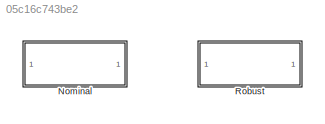
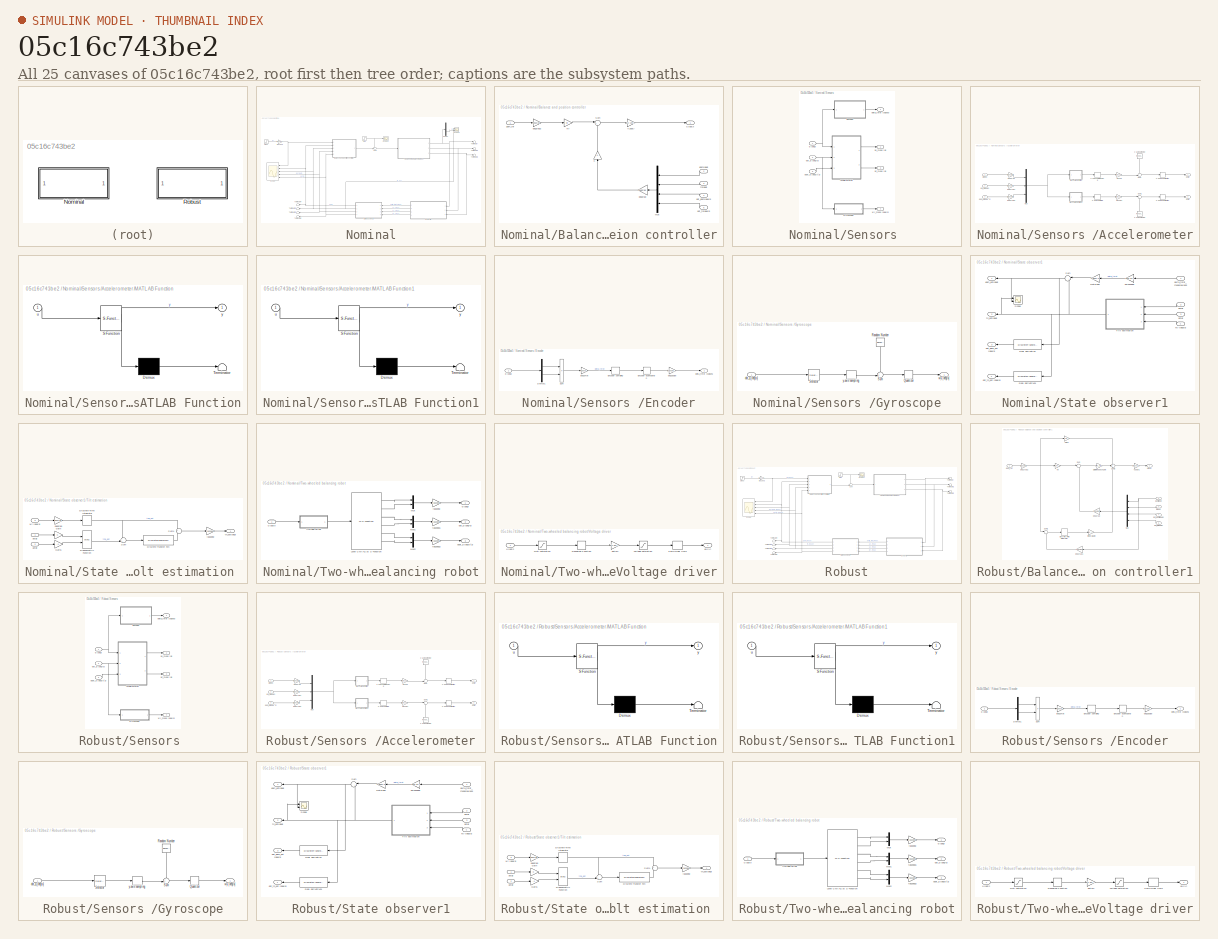
[diagram: thumbnail index - all 25 canvases of the model, root first then tree order]
MODEL slx_05c16c743be2
KIND model
CONFIG AbsTol = auto
CONFIG EnableMultiTasking = off
CONFIG FixedStep = Ts
CONFIG MaxStep = auto
CONFIG MinStep = auto
CONFIG RelTol = 1e-3
CONFIG SampleTimeConstraint = Unconstrained
CONFIG SolverName = VariableStepAuto
CONFIG StartTime = 0.0
CONFIG StopTime = 90
BLOCK [SubSystem] Nominal
  Commented = on
  Ports = []
  RequestExecContextInheritance = off
BLOCK [SubSystem] Nominal/Balance and position controller
  Ports = [5, 1]
  RequestExecContextInheritance = off
BLOCK [Gain] Nominal/Balance and position controller/K
  Gain = K
  Multiplication = Matrix(K*u)
  NameLocation = right
BLOCK [Mux] Nominal/Balance and position controller/Mux
  DisplayOption = bar
  NameLocation = top
  Ports = [4, 1]
BLOCK [Gain] Nominal/Balance and position controller/Nr
  Gain = Nr
BLOCK [Sum] Nominal/Balance and position controller/Sum
  Inputs = |+-
  Ports = [2, 1]
BLOCK [Gain] Nominal/Balance and position controller/V2duty
  Gain = drv.V2duty
BLOCK [Gain] Nominal/Balance and position controller/deg2rad
  Gain = deg2rad
  NameLocation = top
BLOCK [Gain] Nominal/Balance and position controller/deg2rad2
  Gain = deg2rad
BLOCK [Inport] Nominal/Balance and position controller/dot_gam[deg//s]
  NameLocation = top
  Port = 4
BLOCK [Inport] Nominal/Balance and position controller/dot_th[deg//s]
  NameLocation = top
  Port = 5
BLOCK [Inport] Nominal/Balance and position controller/gam[deg]
  NameLocation = top
  Port = 2
BLOCK [Inport] Nominal/Balance and position controller/gam_ref
BLOCK [Inport] Nominal/Balance and position controller/th[deg]
  NameLocation = top
  Port = 3
BLOCK [Outport] Nominal/Balance and position controller/u [duty]
BLOCK [Demux] Nominal/Demux
  Outputs = 2
  Ports = [1, 2]
BLOCK [Scope] Nominal/Scope
  Floating = off
  NameLocation = top
  NumInputPorts = 5
  Ports = [5]
  ScopeSpecificationString = Simulink.scopes.TimeScopeBlockCfg('CurrentConfiguration', extmgr.ConfigurationSet(extmgr.Configuration('Core','General UI',true),extmgr.Configuration('Core','Source UI',true),extmgr.Configuration('Sources','WiredSimulink',true,'DataLoggingVariableName','ScopeData3'),extmgr.Configuration('Visuals','Time Domain',true,'SerializedDisplays',{struct('MinYLimReal','-208.72729','MaxYLimReal','191.04562','...<+1603ch>
BLOCK [Scope] Nominal/Scope1
  Floating = off
  NumInputPorts = 1
  Ports = [1]
  ScopeSpecificationString = Simulink.scopes.TimeScopeBlockCfg('CurrentConfiguration', extmgr.ConfigurationSet(extmgr.Configuration('Core','General UI',true),extmgr.Configuration('Core','Source UI',true),extmgr.Configuration('Sources','WiredSimulink',true,'DataLoggingVariableName','ScopeData5'),extmgr.Configuration('Visuals','Time Domain',true,'SerializedDisplays',{struct('MinYLimReal','-1.00000','MaxYLimReal','1.00000','YLab...<+1446ch>
BLOCK [Scope] Nominal/Scope2
  Floating = off
  NumInputPorts = 2
  Ports = [2]
  ScopeSpecificationString = Simulink.scopes.TimeScopeBlockCfg('CurrentConfiguration', extmgr.ConfigurationSet(extmgr.Configuration('Core','General UI',true),extmgr.Configuration('Core','Source UI',true),extmgr.Configuration('Sources','WiredSimulink',true,'DataLoggingVariableName','ScopeData1'),extmgr.Configuration('Visuals','Time Domain',true,'SerializedDisplays',{struct('MinYLimReal','-1.33859','MaxYLimReal','6.19448','YLab...<+1511ch>
BLOCK [SubSystem] Nominal/Sensors 
  Ports = [3, 4]
  RequestExecContextInheritance = off
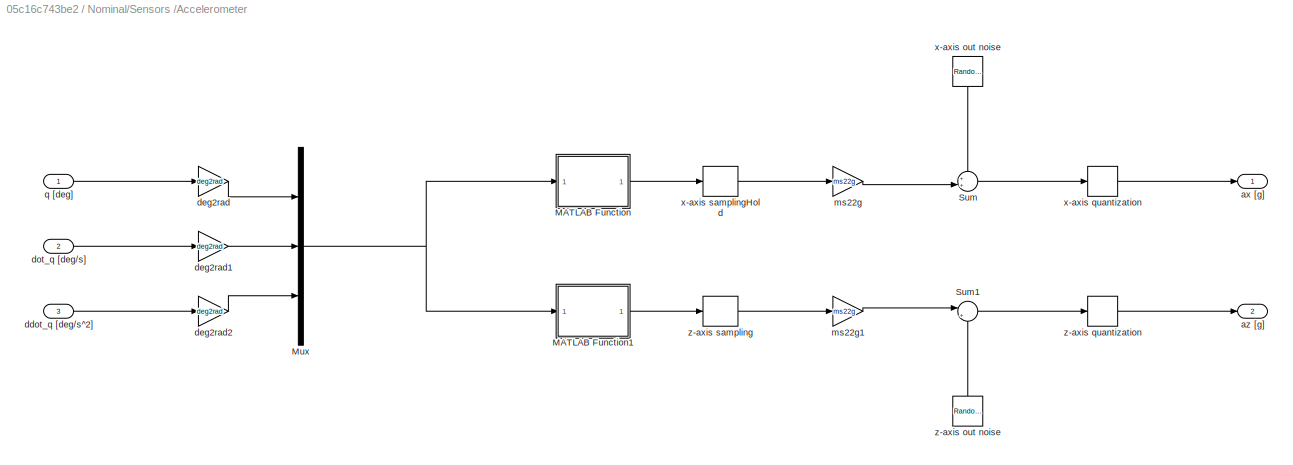
BLOCK [SubSystem] Nominal/Sensors /Accelerometer
  Ports = [3, 2]
  RequestExecContextInheritance = off
BLOCK [SubSystem] Nominal/Sensors /Accelerometer/MATLAB Function
  ErrorFcn = Stateflow.Translate.translate
  PermitHierarchicalResolution = ExplicitOnly
  Ports = [1, 1]
  RequestExecContextInheritance = off
  SFBlockType = MATLAB Function
  TreatAsAtomicUnit = on
BLOCK [Demux] Nominal/Sensors /Accelerometer/MATLAB Function/ Demux 
  Outputs = 1
  Ports = [1, 1]
BLOCK [S-Function] Nominal/Sensors /Accelerometer/MATLAB Function/ SFunction 
  EnableBusSupport = on
  FunctionName = sf_sfun
  Parameters = g,sens,wheel
  PortCounts = [1 2]
  Ports = [1, 2]
  SFcnIsStateOwnerBlock = off
  SFunctionDeploymentMode = off
  Tag = Stateflow S-Function 6
BLOCK [Terminator] Nominal/Sensors /Accelerometer/MATLAB Function/ Terminator 
BLOCK [Inport] Nominal/Sensors /Accelerometer/MATLAB Function/u
BLOCK [Outport] Nominal/Sensors /Accelerometer/MATLAB Function/y
BLOCK [SubSystem] Nominal/Sensors /Accelerometer/MATLAB Function1
  ErrorFcn = Stateflow.Translate.translate
  PermitHierarchicalResolution = ExplicitOnly
  Ports = [1, 1]
  RequestExecContextInheritance = off
  SFBlockType = MATLAB Function
  TreatAsAtomicUnit = on
BLOCK [Demux] Nominal/Sensors /Accelerometer/MATLAB Function1/ Demux 
  Outputs = 1
  Ports = [1, 1]
BLOCK [S-Function] Nominal/Sensors /Accelerometer/MATLAB Function1/ SFunction 
  EnableBusSupport = on
  FunctionName = sf_sfun
  Parameters = g,sens,wheel
  PortCounts = [1 2]
  Ports = [1, 2]
  SFcnIsStateOwnerBlock = off
  SFunctionDeploymentMode = off
  Tag = Stateflow S-Function 7
BLOCK [Terminator] Nominal/Sensors /Accelerometer/MATLAB Function1/ Terminator 
BLOCK [Inport] Nominal/Sensors /Accelerometer/MATLAB Function1/u
BLOCK [Outport] Nominal/Sensors /Accelerometer/MATLAB Function1/y
BLOCK [Mux] Nominal/Sensors /Accelerometer/Mux
  DisplayOption = bar
  Inputs = 3
  Ports = [3, 1]
BLOCK [Sum] Nominal/Sensors /Accelerometer/Sum
  Inputs = ++|
  Ports = [2, 1]
BLOCK [Sum] Nominal/Sensors /Accelerometer/Sum1
  Inputs = |++
  NameLocation = top
  Ports = [2, 1]
BLOCK [Outport] Nominal/Sensors /Accelerometer/ax [g]
BLOCK [Outport] Nominal/Sensors /Accelerometer/az [g]
  Port = 2
BLOCK [Inport] Nominal/Sensors /Accelerometer/ddot_q [deg//s^2]
  Port = 3
BLOCK [Gain] Nominal/Sensors /Accelerometer/deg2rad
  Gain = deg2rad
BLOCK [Gain] Nominal/Sensors /Accelerometer/deg2rad1
  Gain = deg2rad
BLOCK [Gain] Nominal/Sensors /Accelerometer/deg2rad2
  Gain = deg2rad
BLOCK [Inport] Nominal/Sensors /Accelerometer/dot_q [deg//s]
  Port = 2
BLOCK [Gain] Nominal/Sensors /Accelerometer/ms22g
  Gain = ms22g
BLOCK [Gain] Nominal/Sensors /Accelerometer/ms22g1
  Gain = ms22g
BLOCK [Inport] Nominal/Sensors /Accelerometer/q [deg]
BLOCK [RandomNumber] Nominal/Sensors /Accelerometer/x-axis out noise 
  NameLocation = left
  SampleTime = Ts
  Variance = sens.mpu.acc.noisevar
BLOCK [Quantizer] Nominal/Sensors /Accelerometer/x-axis quantization
  QuantizationInterval = sens.mpu.acc.LSB2g
BLOCK [ZeroOrderHold] Nominal/Sensors /Accelerometer/x-axis samplingHold
  SampleTime = Ts
BLOCK [RandomNumber] Nominal/Sensors /Accelerometer/z-axis out noise 
  NameLocation = right
  SampleTime = Ts
  Variance = sens.mpu.acc.noisevar
BLOCK [Quantizer] Nominal/Sensors /Accelerometer/z-axis quantization
  QuantizationInterval = sens.mpu.acc.LSB2g
BLOCK [ZeroOrderHold] Nominal/Sensors /Accelerometer/z-axis sampling
  SampleTime = Ts
BLOCK [SubSystem] Nominal/Sensors /Encoder
  NameLocation = top
  Ports = [1, 1]
  RequestExecContextInheritance = off
BLOCK [Demux] Nominal/Sensors /Encoder/Demux1
  Outputs = 2
  Ports = [1, 2]
BLOCK [Quantizer] Nominal/Sensors /Encoder/Encoder quantization
  QuantizationInterval = sens.enc.pulse2deg
BLOCK [ZeroOrderHold] Nominal/Sensors /Encoder/Encoder sampling
  SampleTime = Ts
BLOCK [Sum] Nominal/Sensors /Encoder/Sum
  IconShape = rectangular
  Inputs = +-
  Ports = [2, 1]
BLOCK [Gain] Nominal/Sensors /Encoder/deg2pulse
  Gain = sens.enc.deg2pulse
BLOCK [Outport] Nominal/Sensors /Encoder/delta_throt [pulses]
BLOCK [Gain] Nominal/Sensors /Encoder/load2mot
  Gain = gbox.N
BLOCK [Inport] Nominal/Sensors /Encoder/q [deg]
BLOCK [SubSystem] Nominal/Sensors /Gyroscope
  Ports = [1, 1]
  RequestExecContextInheritance = off
BLOCK [Quantizer] Nominal/Sensors /Gyroscope/Quantizer
  QuantizationInterval = sens.mpu.gyro.LSB2degs
BLOCK [RandomNumber] Nominal/Sensors /Gyroscope/Random Number
  NameLocation = left
  SampleTime = Ts
  Variance = sens.mpu.gyro.noisevar
BLOCK [Selector] Nominal/Sensors /Gyroscope/Selector
  IndexOptions = Index vector (dialog)
  Indices = [2]
  InputPortWidth = 2
  OutputSizes = 1
  Ports = [1, 1]
BLOCK [Sum] Nominal/Sensors /Gyroscope/Sum
  Inputs = ++|
  Ports = [2, 1]
BLOCK [Inport] Nominal/Sensors /Gyroscope/dot_q [deg//s]
BLOCK [Outport] Nominal/Sensors /Gyroscope/wy [deg//s]
BLOCK [ZeroOrderHold] Nominal/Sensors /Gyroscope/y-axis sampling
  SampleTime = Ts
BLOCK [Outport] Nominal/Sensors /ax_meas [g]
  Port = 2
BLOCK [Outport] Nominal/Sensors /az_meas [g]
  Port = 3
BLOCK [Inport] Nominal/Sensors /ddot_q [deg//s^2]
  Port = 3
BLOCK [Outport] Nominal/Sensors /delta_throt [pulses]
BLOCK [Inport] Nominal/Sensors /dot_q [deg//s]
  Port = 2
BLOCK [Inport] Nominal/Sensors /q [deg]
BLOCK [Outport] Nominal/Sensors /wy_meas [deg//s]
  Port = 4
BLOCK [SubSystem] Nominal/State observer1
  Ports = [4, 4]
  RequestExecContextInheritance = off
BLOCK [DiscreteTransferFcn] Nominal/State observer1/Real derivative
  Denominator = [0.03 0 0 0]
  InputPortMap = u0
  Numerator = [1 0 0 -1]
  Ports = [1, 1]
BLOCK [DiscreteTransferFcn] Nominal/State observer1/Real derivative1
  Denominator = [0.03 0 0 0]
  InputPortMap = u0
  Numerator = [1 0 0 -1]
  Ports = [1, 1]
BLOCK [Scope] Nominal/State observer1/Scope
  Floating = off
  NumInputPorts = 2
  Ports = [2]
  ScopeSpecificationString = Simulink.scopes.TimeScopeBlockCfg('CurrentConfiguration', extmgr.ConfigurationSet(extmgr.Configuration('Core','General UI',true),extmgr.Configuration('Core','Source UI',true),extmgr.Configuration('Sources','WiredSimulink',true,'DataLoggingVariableName','ScopeData1'),extmgr.Configuration('Visuals','Time Domain',true,'SerializedDisplays',{struct('MinYLimReal','-178.90326','MaxYLimReal','1160.12937',...<+1442ch>
BLOCK [Sum] Nominal/State observer1/Sum
  Inputs = |++
  NameLocation = top
  Ports = [2, 1]
BLOCK [SubSystem] Nominal/State observer1/Tilt estimation 
  NameLocation = top
  Ports = [3, 1]
  RequestExecContextInheritance = off
BLOCK [DiscreteTransferFcn] Nominal/State observer1/Tilt estimation /Discrete Transfer Fcn
  Denominator = [1 (w_c*Ts-1)]
  InputPortMap = u0
  Numerator = [Ts*w_c]
  Ports = [1, 1]
  SampleTime = Ts
BLOCK [DiscreteIntegrator] Nominal/State observer1/Tilt estimation /Discrete-Time Integrator
  ICPrevOutput = DiscIntNeverNeededParam
  ICPrevScaledInput = DiscIntNeverNeededParam
  InitialConditionSetting = Auto
  Ports = [1, 1]
  SampleTime = Ts
BLOCK [Gain] Nominal/State observer1/Tilt estimation /Gain
BLOCK [Gain] Nominal/State observer1/Tilt estimation /Gain1
  Gain = -1
BLOCK [Sum] Nominal/State observer1/Tilt estimation /Sum
  Inputs = -+|
  Ports = [2, 1]
BLOCK [Sum] Nominal/State observer1/Tilt estimation /Sum1
  Inputs = +|+
  Ports = [2, 1]
BLOCK [Trigonometry] Nominal/State observer1/Tilt estimation /Trigonometric Function
  Operator = atan2
  Ports = [2, 1]
BLOCK [Inport] Nominal/State observer1/Tilt estimation /ax[g]
BLOCK [Inport] Nominal/State observer1/Tilt estimation /az[g]
  Port = 2
BLOCK [Gain] Nominal/State observer1/Tilt estimation /deg2rad
  Gain = deg2rad
BLOCK [Gain] Nominal/State observer1/Tilt estimation /rad2deg
  Gain = rad2deg
BLOCK [Outport] Nominal/State observer1/Tilt estimation /th_est[deg]
BLOCK [Inport] Nominal/State observer1/Tilt estimation /wy [deg//s]
  Port = 3
BLOCK [Inport] Nominal/State observer1/ax[g]
  NameLocation = top
  Port = 2
BLOCK [Inport] Nominal/State observer1/az[g]
  NameLocation = top
  Port = 3
BLOCK [Inport] Nominal/State observer1/delta_throt_meas[pulses]
  NameLocation = top
BLOCK [Outport] Nominal/State observer1/dot_gam_est [deg//s]
  NameLocation = top
  Port = 3
BLOCK [Outport] Nominal/State observer1/dot_th_est [deg//s]
  NameLocation = top
  Port = 4
BLOCK [Outport] Nominal/State observer1/gam_est[deg]
  NameLocation = top
BLOCK [Gain] Nominal/State observer1/mot2load
  Gain = 1/gbox.N
  NameLocation = top
BLOCK [Gain] Nominal/State observer1/pulse2deg
  Gain = sens.enc.pulse2deg
  NameLocation = top
BLOCK [Outport] Nominal/State observer1/th_est[deg]
  NameLocation = top
  Port = 2
BLOCK [Inport] Nominal/State observer1/wy [deg//s]
  NameLocation = top
  Port = 4
BLOCK [Step] Nominal/Step
  After = dist
  SampleTime = Ts
  Time = 10
BLOCK [Step] Nominal/Step1
  After = step
  SampleTime = 0
  Time = 0
BLOCK [Sum] Nominal/Sum
  Inputs = -+|
  Ports = [2, 1]
BLOCK [Terminator] Nominal/Terminator
BLOCK [Terminator] Nominal/Terminator1
BLOCK [Terminator] Nominal/Terminator2
BLOCK [Terminator] Nominal/Terminator3
  NameLocation = top
BLOCK [Terminator] Nominal/Terminator4
  NameLocation = top
BLOCK [Terminator] Nominal/Terminator5
  NameLocation = top
BLOCK [Terminator] Nominal/Terminator6
  NameLocation = top
BLOCK [SubSystem] Nominal/Two-wheeled balancing robot
  Ports = [1, 3]
  RequestExecContextInheritance = off
BLOCK [M-S-Function] Nominal/Two-wheeled balancing robot/Level-2 MATLAB S-Function
  FunctionName = sfun_balrob_long_dyn
  Parameters = x0, body, mot, gbox, wheel
  Ports = [1, 6]
BLOCK [Mux] Nominal/Two-wheeled balancing robot/Mux
  DisplayOption = bar
  Inputs = 2
  Ports = [2, 1]
BLOCK [Mux] Nominal/Two-wheeled balancing robot/Mux1
  DisplayOption = bar
  Inputs = 2
  Ports = [2, 1]
BLOCK [Mux] Nominal/Two-wheeled balancing robot/Mux2
  DisplayOption = bar
  Inputs = 2
  Ports = [2, 1]
BLOCK [SubSystem] Nominal/Two-wheeled balancing robot/Voltage driver
  Ports = [1, 1]
  RequestExecContextInheritance = off
BLOCK [Saturate] Nominal/Two-wheeled balancing robot/Voltage driver/Duty saturation
  LowerLimit = -drv.dutymax
  UpperLimit = drv.dutymax
BLOCK [Rounding] Nominal/Two-wheeled balancing robot/Voltage driver/Rounding Function
  Operator = fix
BLOCK [ZeroOrderHold] Nominal/Two-wheeled balancing robot/Voltage driver/Zero-Order Hold
  SampleTime = Ts
BLOCK [Gain] Nominal/Two-wheeled balancing robot/Voltage driver/duty2V
  Gain = drv.duty2V
BLOCK [Inport] Nominal/Two-wheeled balancing robot/Voltage driver/u [duty]
BLOCK [Outport] Nominal/Two-wheeled balancing robot/Voltage driver/ua [V]
BLOCK [Saturate] Nominal/Two-wheeled balancing robot/Voltage driver/voltage saturation
  LowerLimit = -drv.Vbus
  UpperLimit = drv.Vbus
BLOCK [Outport] Nominal/Two-wheeled balancing robot/ddot_q [deg//s^2]
  Port = 3
BLOCK [Outport] Nominal/Two-wheeled balancing robot/dot_q [deg//s]
  Port = 2
BLOCK [Outport] Nominal/Two-wheeled balancing robot/q [deg]
BLOCK [Gain] Nominal/Two-wheeled balancing robot/rad2deg
  Gain = rad2deg
BLOCK [Gain] Nominal/Two-wheeled balancing robot/rad2deg1
  Gain = rad2deg
BLOCK [Gain] Nominal/Two-wheeled balancing robot/rad2deg2
  Gain = rad2deg
BLOCK [Inport] Nominal/Two-wheeled balancing robot/u [duty]
BLOCK [Gain] Nominal/rad2deg
  Gain = rad2deg
BLOCK [SubSystem] Robust
  Ports = []
  RequestExecContextInheritance = off
BLOCK [SubSystem] Robust/Balance and position controller1
  Ports = [5, 1]
  RequestExecContextInheritance = off
BLOCK [DiscreteIntegrator] Robust/Balance and position controller1/Discrete-Time Integrator
  ICPrevOutput = DiscIntNeverNeededParam
  ICPrevScaledInput = DiscIntNeverNeededParam
  InitialConditionSetting = Auto
  IntegratorMethod = Accumulation: Forward Euler
  Ports = [1, 1]
  SampleTime = -1
BLOCK [Gain] Robust/Balance and position controller1/Gain1
  Gain = Nu
BLOCK [Gain] Robust/Balance and position controller1/Integral gain
  Gain = K_I
BLOCK [Mux] Robust/Balance and position controller1/Mux
  DisplayOption = bar
  NameLocation = top
  Ports = [4, 1]
BLOCK [Gain] Robust/Balance and position controller1/Nx
  Gain = Nx
BLOCK [Gain] Robust/Balance and position controller1/State feedback gain
  Gain = K_e_state
  Multiplication = Matrix(K*u)
BLOCK [Sum] Robust/Balance and position controller1/Sum
  Inputs = |+-
  Ports = [2, 1]
BLOCK [Sum] Robust/Balance and position controller1/Sum1
  Inputs = |+-
  Ports = [2, 1]
BLOCK [Sum] Robust/Balance and position controller1/Sum2
  Inputs = +++
  Ports = [3, 1]
BLOCK [Gain] Robust/Balance and position controller1/V2duty1
  Gain = drv.V2duty
BLOCK [Gain] Robust/Balance and position controller1/deg2rad
  Gain = deg2rad
BLOCK [Gain] Robust/Balance and position controller1/deg2rad1
  Gain = deg2rad
BLOCK [Gain] Robust/Balance and position controller1/deg2rad2
  Gain = deg2rad
BLOCK [Inport] Robust/Balance and position controller1/dot_gam[deg//s]
  NameLocation = top
  Port = 4
BLOCK [Inport] Robust/Balance and position controller1/dot_th[deg//s]
  NameLocation = top
  Port = 5
BLOCK [Inport] Robust/Balance and position controller1/gam[deg]
  NameLocation = top
  Port = 2
BLOCK [Inport] Robust/Balance and position controller1/gam_ref
BLOCK [Inport] Robust/Balance and position controller1/th[deg]
  NameLocation = top
  Port = 3
BLOCK [Outport] Robust/Balance and position controller1/u [duty]
BLOCK [Scope] Robust/Scope
  Floating = off
  NameLocation = top
  NumInputPorts = 5
  Ports = [5]
  ScopeSpecificationString = Simulink.scopes.TimeScopeBlockCfg('CurrentConfiguration', extmgr.ConfigurationSet(extmgr.Configuration('Core','General UI',true),extmgr.Configuration('Core','Source UI',true),extmgr.Configuration('Sources','WiredSimulink',true,'DataLoggingVariableName','ScopeData3'),extmgr.Configuration('Visuals','Time Domain',true,'SerializedDisplays',{struct('MinYLimReal','-198.25918','MaxYLimReal','367.01751','...<+1653ch>
BLOCK [Scope] Robust/Scope1
  Floating = off
  NumInputPorts = 1
  Ports = [1]
  ScopeSpecificationString = Simulink.scopes.TimeScopeBlockCfg('CurrentConfiguration', extmgr.ConfigurationSet(extmgr.Configuration('Core','General UI',true),extmgr.Configuration('Core','Source UI',true),extmgr.Configuration('Sources','WiredSimulink',true,'DataLoggingVariableName','ScopeData5'),extmgr.Configuration('Visuals','Time Domain',true,'SerializedDisplays',{struct('MinYLimReal','-14.375','MaxYLimReal','129.375','YLabe...<+1444ch>
BLOCK [SubSystem] Robust/Sensors 
  Ports = [3, 4]
  RequestExecContextInheritance = off
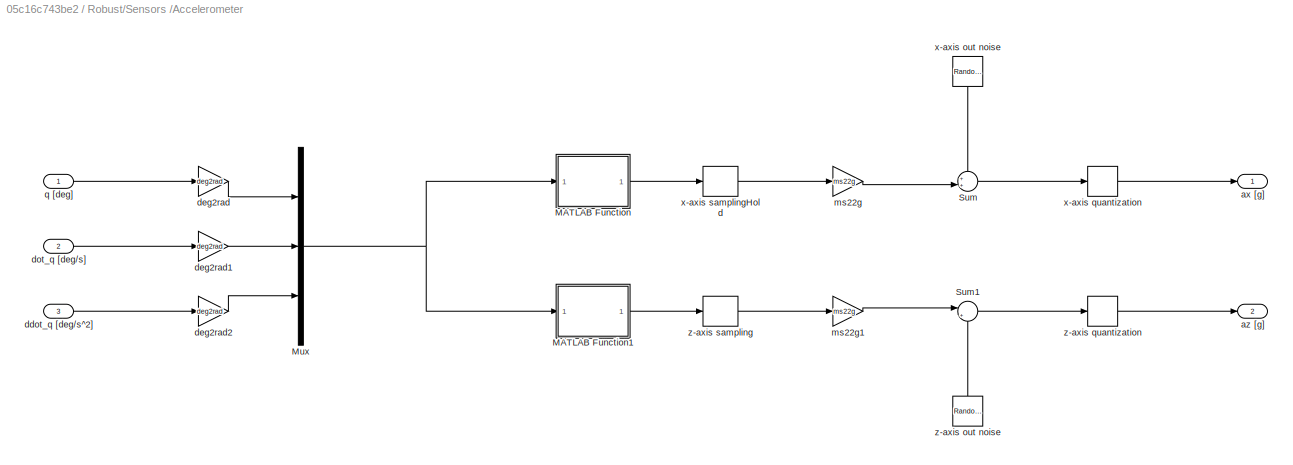
BLOCK [SubSystem] Robust/Sensors /Accelerometer
  Ports = [3, 2]
  RequestExecContextInheritance = off
BLOCK [SubSystem] Robust/Sensors /Accelerometer/MATLAB Function
  ErrorFcn = Stateflow.Translate.translate
  PermitHierarchicalResolution = ExplicitOnly
  Ports = [1, 1]
  RequestExecContextInheritance = off
  SFBlockType = MATLAB Function
  TreatAsAtomicUnit = on
BLOCK [Demux] Robust/Sensors /Accelerometer/MATLAB Function/ Demux 
  Outputs = 1
  Ports = [1, 1]
BLOCK [S-Function] Robust/Sensors /Accelerometer/MATLAB Function/ SFunction 
  EnableBusSupport = on
  FunctionName = sf_sfun
  Parameters = g,sens,wheel
  PortCounts = [1 2]
  Ports = [1, 2]
  SFcnIsStateOwnerBlock = off
  SFunctionDeploymentMode = off
  Tag = Stateflow S-Function 1
BLOCK [Terminator] Robust/Sensors /Accelerometer/MATLAB Function/ Terminator 
BLOCK [Inport] Robust/Sensors /Accelerometer/MATLAB Function/u
BLOCK [Outport] Robust/Sensors /Accelerometer/MATLAB Function/y
BLOCK [SubSystem] Robust/Sensors /Accelerometer/MATLAB Function1
  ErrorFcn = Stateflow.Translate.translate
  PermitHierarchicalResolution = ExplicitOnly
  Ports = [1, 1]
  RequestExecContextInheritance = off
  SFBlockType = MATLAB Function
  TreatAsAtomicUnit = on
BLOCK [Demux] Robust/Sensors /Accelerometer/MATLAB Function1/ Demux 
  Outputs = 1
  Ports = [1, 1]
BLOCK [S-Function] Robust/Sensors /Accelerometer/MATLAB Function1/ SFunction 
  EnableBusSupport = on
  FunctionName = sf_sfun
  Parameters = g,sens,wheel
  PortCounts = [1 2]
  Ports = [1, 2]
  SFcnIsStateOwnerBlock = off
  SFunctionDeploymentMode = off
  Tag = Stateflow S-Function 2
BLOCK [Terminator] Robust/Sensors /Accelerometer/MATLAB Function1/ Terminator 
BLOCK [Inport] Robust/Sensors /Accelerometer/MATLAB Function1/u
BLOCK [Outport] Robust/Sensors /Accelerometer/MATLAB Function1/y
BLOCK [Mux] Robust/Sensors /Accelerometer/Mux
  DisplayOption = bar
  Inputs = 3
  Ports = [3, 1]
BLOCK [Sum] Robust/Sensors /Accelerometer/Sum
  Inputs = ++|
  Ports = [2, 1]
BLOCK [Sum] Robust/Sensors /Accelerometer/Sum1
  Inputs = |++
  NameLocation = top
  Ports = [2, 1]
BLOCK [Outport] Robust/Sensors /Accelerometer/ax [g]
BLOCK [Outport] Robust/Sensors /Accelerometer/az [g]
  Port = 2
BLOCK [Inport] Robust/Sensors /Accelerometer/ddot_q [deg//s^2]
  Port = 3
BLOCK [Gain] Robust/Sensors /Accelerometer/deg2rad
  Gain = deg2rad
BLOCK [Gain] Robust/Sensors /Accelerometer/deg2rad1
  Gain = deg2rad
BLOCK [Gain] Robust/Sensors /Accelerometer/deg2rad2
  Gain = deg2rad
BLOCK [Inport] Robust/Sensors /Accelerometer/dot_q [deg//s]
  Port = 2
BLOCK [Gain] Robust/Sensors /Accelerometer/ms22g
  Gain = ms22g
BLOCK [Gain] Robust/Sensors /Accelerometer/ms22g1
  Gain = ms22g
BLOCK [Inport] Robust/Sensors /Accelerometer/q [deg]
BLOCK [RandomNumber] Robust/Sensors /Accelerometer/x-axis out noise 
  NameLocation = left
  SampleTime = Ts
  Variance = sens.mpu.acc.noisevar
BLOCK [Quantizer] Robust/Sensors /Accelerometer/x-axis quantization
  QuantizationInterval = sens.mpu.acc.LSB2g
BLOCK [ZeroOrderHold] Robust/Sensors /Accelerometer/x-axis samplingHold
  SampleTime = Ts
BLOCK [RandomNumber] Robust/Sensors /Accelerometer/z-axis out noise 
  NameLocation = right
  SampleTime = Ts
  Variance = sens.mpu.acc.noisevar
BLOCK [Quantizer] Robust/Sensors /Accelerometer/z-axis quantization
  QuantizationInterval = sens.mpu.acc.LSB2g
BLOCK [ZeroOrderHold] Robust/Sensors /Accelerometer/z-axis sampling
  SampleTime = Ts
BLOCK [SubSystem] Robust/Sensors /Encoder
  NameLocation = top
  Ports = [1, 1]
  RequestExecContextInheritance = off
BLOCK [Demux] Robust/Sensors /Encoder/Demux1
  Outputs = 2
  Ports = [1, 2]
BLOCK [Quantizer] Robust/Sensors /Encoder/Encoder quantization
  QuantizationInterval = sens.enc.pulse2deg
BLOCK [ZeroOrderHold] Robust/Sensors /Encoder/Encoder sampling
  SampleTime = Ts
BLOCK [Sum] Robust/Sensors /Encoder/Sum
  IconShape = rectangular
  Inputs = +-
  Ports = [2, 1]
BLOCK [Gain] Robust/Sensors /Encoder/deg2pulse
  Gain = sens.enc.deg2pulse
BLOCK [Outport] Robust/Sensors /Encoder/delta_throt [pulses]
BLOCK [Gain] Robust/Sensors /Encoder/load2mot
  Gain = gbox.N
BLOCK [Inport] Robust/Sensors /Encoder/q [deg]
BLOCK [SubSystem] Robust/Sensors /Gyroscope
  Ports = [1, 1]
  RequestExecContextInheritance = off
BLOCK [Quantizer] Robust/Sensors /Gyroscope/Quantizer
  QuantizationInterval = sens.mpu.gyro.LSB2degs
BLOCK [RandomNumber] Robust/Sensors /Gyroscope/Random Number
  NameLocation = left
  SampleTime = Ts
  Variance = sens.mpu.gyro.noisevar
BLOCK [Selector] Robust/Sensors /Gyroscope/Selector
  IndexOptions = Index vector (dialog)
  Indices = [2]
  InputPortWidth = 2
  OutputSizes = 1
  Ports = [1, 1]
BLOCK [Sum] Robust/Sensors /Gyroscope/Sum
  Inputs = ++|
  Ports = [2, 1]
BLOCK [Inport] Robust/Sensors /Gyroscope/dot_q [deg//s]
BLOCK [Outport] Robust/Sensors /Gyroscope/wy [deg//s]
BLOCK [ZeroOrderHold] Robust/Sensors /Gyroscope/y-axis sampling
  SampleTime = Ts
BLOCK [Outport] Robust/Sensors /ax_meas [g]
  Port = 2
BLOCK [Outport] Robust/Sensors /az_meas [g]
  Port = 3
BLOCK [Inport] Robust/Sensors /ddot_q [deg//s^2]
  Port = 3
BLOCK [Outport] Robust/Sensors /delta_throt [pulses]
BLOCK [Inport] Robust/Sensors /dot_q [deg//s]
  Port = 2
BLOCK [Inport] Robust/Sensors /q [deg]
BLOCK [Outport] Robust/Sensors /wy_meas [deg//s]
  Port = 4
BLOCK [SubSystem] Robust/State observer1
  Ports = [4, 4]
  RequestExecContextInheritance = off
BLOCK [DiscreteTransferFcn] Robust/State observer1/Real derivative
  Denominator = [0.03 0 0 0]
  InputPortMap = u0
  Numerator = [1 0 0 -1]
  Ports = [1, 1]
BLOCK [DiscreteTransferFcn] Robust/State observer1/Real derivative1
  Denominator = [0.03 0 0 0]
  InputPortMap = u0
  Numerator = [1 0 0 -1]
  Ports = [1, 1]
BLOCK [Scope] Robust/State observer1/Scope
  Floating = off
  NumInputPorts = 2
  Ports = [2]
  ScopeSpecificationString = Simulink.scopes.TimeScopeBlockCfg('CurrentConfiguration', extmgr.ConfigurationSet(extmgr.Configuration('Core','General UI',true),extmgr.Configuration('Core','Source UI',true),extmgr.Configuration('Sources','WiredSimulink',true,'DataLoggingVariableName','ScopeData1'),extmgr.Configuration('Visuals','Time Domain',true,'SerializedDisplays',{struct('MinYLimReal','-178.90326','MaxYLimReal','1160.12937',...<+1442ch>
BLOCK [Sum] Robust/State observer1/Sum
  Inputs = |++
  NameLocation = top
  Ports = [2, 1]
BLOCK [SubSystem] Robust/State observer1/Tilt estimation 
  NameLocation = top
  Ports = [3, 1]
  RequestExecContextInheritance = off
BLOCK [DiscreteTransferFcn] Robust/State observer1/Tilt estimation /Discrete Transfer Fcn
  Denominator = [1 (w_c*Ts-1)]
  InputPortMap = u0
  Numerator = [Ts*w_c]
  Ports = [1, 1]
  SampleTime = Ts
BLOCK [DiscreteIntegrator] Robust/State observer1/Tilt estimation /Discrete-Time Integrator
  ICPrevOutput = DiscIntNeverNeededParam
  ICPrevScaledInput = DiscIntNeverNeededParam
  InitialConditionSetting = Auto
  Ports = [1, 1]
  SampleTime = Ts
BLOCK [Gain] Robust/State observer1/Tilt estimation /Gain
BLOCK [Gain] Robust/State observer1/Tilt estimation /Gain1
  Gain = -1
BLOCK [Sum] Robust/State observer1/Tilt estimation /Sum
  Inputs = -+|
  Ports = [2, 1]
BLOCK [Sum] Robust/State observer1/Tilt estimation /Sum1
  Inputs = +|+
  Ports = [2, 1]
BLOCK [Trigonometry] Robust/State observer1/Tilt estimation /Trigonometric Function
  Operator = atan2
  Ports = [2, 1]
BLOCK [Inport] Robust/State observer1/Tilt estimation /ax[g]
BLOCK [Inport] Robust/State observer1/Tilt estimation /az[g]
  Port = 2
BLOCK [Gain] Robust/State observer1/Tilt estimation /deg2rad
  Gain = deg2rad
BLOCK [Gain] Robust/State observer1/Tilt estimation /rad2deg
  Gain = rad2deg
BLOCK [Outport] Robust/State observer1/Tilt estimation /th_est[deg]
BLOCK [Inport] Robust/State observer1/Tilt estimation /wy [deg//s]
  Port = 3
BLOCK [Inport] Robust/State observer1/ax[g]
  NameLocation = top
  Port = 2
BLOCK [Inport] Robust/State observer1/az[g]
  NameLocation = top
  Port = 3
BLOCK [Inport] Robust/State observer1/delta_throt_meas[pulses]
  NameLocation = top
BLOCK [Outport] Robust/State observer1/dot_gam_est [deg//s]
  NameLocation = top
  Port = 3
BLOCK [Outport] Robust/State observer1/dot_th_est [deg//s]
  NameLocation = top
  Port = 4
BLOCK [Outport] Robust/State observer1/gam_est[deg]
  NameLocation = top
BLOCK [Gain] Robust/State observer1/mot2load
  Gain = 1/gbox.N
  NameLocation = top
BLOCK [Gain] Robust/State observer1/pulse2deg
  Gain = sens.enc.pulse2deg
  NameLocation = top
BLOCK [Outport] Robust/State observer1/th_est[deg]
  NameLocation = top
  Port = 2
BLOCK [Inport] Robust/State observer1/wy [deg//s]
  NameLocation = top
  Port = 4
BLOCK [Step] Robust/Step
  After = dist
  SampleTime = Ts
  Time = 10
BLOCK [Step] Robust/Step1
  After = step
  SampleTime = 0
  Time = 0
BLOCK [Sum] Robust/Sum
  Inputs = -+|
  Ports = [2, 1]
BLOCK [Terminator] Robust/Terminator
BLOCK [Terminator] Robust/Terminator1
BLOCK [Terminator] Robust/Terminator2
BLOCK [Terminator] Robust/Terminator3
  NameLocation = top
BLOCK [Terminator] Robust/Terminator4
  NameLocation = top
BLOCK [Terminator] Robust/Terminator5
  NameLocation = top
BLOCK [Terminator] Robust/Terminator6
  NameLocation = top
BLOCK [SubSystem] Robust/Two-wheeled balancing robot
  Ports = [1, 3]
  RequestExecContextInheritance = off
BLOCK [M-S-Function] Robust/Two-wheeled balancing robot/Level-2 MATLAB S-Function
  FunctionName = sfun_balrob_long_dyn
  Parameters = x0, body, mot, gbox, wheel
  Ports = [1, 6]
BLOCK [Mux] Robust/Two-wheeled balancing robot/Mux
  DisplayOption = bar
  Inputs = 2
  Ports = [2, 1]
BLOCK [Mux] Robust/Two-wheeled balancing robot/Mux1
  DisplayOption = bar
  Inputs = 2
  Ports = [2, 1]
BLOCK [Mux] Robust/Two-wheeled balancing robot/Mux2
  DisplayOption = bar
  Inputs = 2
  Ports = [2, 1]
BLOCK [SubSystem] Robust/Two-wheeled balancing robot/Voltage driver
  Ports = [1, 1]
  RequestExecContextInheritance = off
BLOCK [Saturate] Robust/Two-wheeled balancing robot/Voltage driver/Duty saturation
  LowerLimit = -drv.dutymax
  UpperLimit = drv.dutymax
BLOCK [Rounding] Robust/Two-wheeled balancing robot/Voltage driver/Rounding Function
  Operator = fix
BLOCK [ZeroOrderHold] Robust/Two-wheeled balancing robot/Voltage driver/Zero-Order Hold
  SampleTime = Ts
BLOCK [Gain] Robust/Two-wheeled balancing robot/Voltage driver/duty2V
  Gain = drv.duty2V
BLOCK [Inport] Robust/Two-wheeled balancing robot/Voltage driver/u [duty]
BLOCK [Outport] Robust/Two-wheeled balancing robot/Voltage driver/ua [V]
BLOCK [Saturate] Robust/Two-wheeled balancing robot/Voltage driver/voltage saturation
  LowerLimit = -drv.Vbus
  UpperLimit = drv.Vbus
BLOCK [Outport] Robust/Two-wheeled balancing robot/ddot_q [deg//s^2]
  Port = 3
BLOCK [Outport] Robust/Two-wheeled balancing robot/dot_q [deg//s]
  Port = 2
BLOCK [Outport] Robust/Two-wheeled balancing robot/q [deg]
BLOCK [Gain] Robust/Two-wheeled balancing robot/rad2deg
  Gain = rad2deg
BLOCK [Gain] Robust/Two-wheeled balancing robot/rad2deg1
  Gain = rad2deg
BLOCK [Gain] Robust/Two-wheeled balancing robot/rad2deg2
  Gain = rad2deg
BLOCK [Inport] Robust/Two-wheeled balancing robot/u [duty]
BLOCK [Gain] Robust/rad2deg
  Gain = rad2deg
LINE Nominal/Balance and position controller/K:1 -> Nominal/Balance and position controller/Sum:2
LINE Nominal/Balance and position controller/Mux:1 -> Nominal/Balance and position controller/deg2rad:1
LINE Nominal/Balance and position controller/Nr:1 -> Nominal/Balance and position controller/Sum:1
LINE Nominal/Balance and position controller/Sum:1 -> Nominal/Balance and position controller/V2duty:1
LINE Nominal/Balance and position controller/V2duty:1 -> Nominal/Balance and position controller/u [duty]:1
LINE Nominal/Balance and position controller/deg2rad2:1 -> Nominal/Balance and position controller/Nr:1
LINE Nominal/Balance and position controller/deg2rad:1 -> Nominal/Balance and position controller/K:1
LINE Nominal/Balance and position controller/dot_gam[deg//s]:1 -> Nominal/Balance and position controller/Mux:3
LINE Nominal/Balance and position controller/dot_th[deg//s]:1 -> Nominal/Balance and position controller/Mux:4
LINE Nominal/Balance and position controller/gam[deg]:1 -> Nominal/Balance and position controller/Mux:1
LINE Nominal/Balance and position controller/gam_ref:1 -> Nominal/Balance and position controller/deg2rad2:1
LINE Nominal/Balance and position controller/th[deg]:1 -> Nominal/Balance and position controller/Mux:2
LINE Nominal/Balance and position controller:1 -> Nominal/Sum:2
LINE Nominal/Demux:2 -> Nominal/Scope2:2
LINE Nominal/Sensors /Accelerometer/MATLAB Function1:1 -> Nominal/Sensors /Accelerometer/z-axis sampling:1
LINE Nominal/Sensors /Accelerometer/MATLAB Function:1 -> Nominal/Sensors /Accelerometer/x-axis samplingHold:1
NET Nominal/Sensors /Accelerometer/Mux:1 -> Nominal/Sensors /Accelerometer/MATLAB Function1:1, Nominal/Sensors /Accelerometer/MATLAB Function:1
LINE Nominal/Sensors /Accelerometer/Sum1:1 -> Nominal/Sensors /Accelerometer/z-axis quantization:1
LINE Nominal/Sensors /Accelerometer/Sum:1 -> Nominal/Sensors /Accelerometer/x-axis quantization:1
LINE Nominal/Sensors /Accelerometer/ddot_q [deg//s^2]:1 -> Nominal/Sensors /Accelerometer/deg2rad2:1
LINE Nominal/Sensors /Accelerometer/deg2rad1:1 -> Nominal/Sensors /Accelerometer/Mux:2
LINE Nominal/Sensors /Accelerometer/deg2rad2:1 -> Nominal/Sensors /Accelerometer/Mux:3
LINE Nominal/Sensors /Accelerometer/deg2rad:1 -> Nominal/Sensors /Accelerometer/Mux:1
LINE Nominal/Sensors /Accelerometer/dot_q [deg//s]:1 -> Nominal/Sensors /Accelerometer/deg2rad1:1
LINE Nominal/Sensors /Accelerometer/ms22g1:1 -> Nominal/Sensors /Accelerometer/Sum1:1
LINE Nominal/Sensors /Accelerometer/ms22g:1 -> Nominal/Sensors /Accelerometer/Sum:2
LINE Nominal/Sensors /Accelerometer/q [deg]:1 -> Nominal/Sensors /Accelerometer/deg2rad:1
LINE Nominal/Sensors /Accelerometer/x-axis out noise :1 -> Nominal/Sensors /Accelerometer/Sum:1
LINE Nominal/Sensors /Accelerometer/x-axis quantization:1 -> Nominal/Sensors /Accelerometer/ax [g]:1
LINE Nominal/Sensors /Accelerometer/x-axis samplingHold:1 -> Nominal/Sensors /Accelerometer/ms22g:1
LINE Nominal/Sensors /Accelerometer/z-axis out noise :1 -> Nominal/Sensors /Accelerometer/Sum1:2
LINE Nominal/Sensors /Accelerometer/z-axis quantization:1 -> Nominal/Sensors /Accelerometer/az [g]:1
LINE Nominal/Sensors /Accelerometer/z-axis sampling:1 -> Nominal/Sensors /Accelerometer/ms22g1:1
LINE Nominal/Sensors /Accelerometer:1 -> Nominal/Sensors /ax_meas [g]:1
LINE Nominal/Sensors /Accelerometer:2 -> Nominal/Sensors /az_meas [g]:1
LINE Nominal/Sensors /Encoder/Demux1:1 -> Nominal/Sensors /Encoder/Sum:1
LINE Nominal/Sensors /Encoder/Demux1:2 -> Nominal/Sensors /Encoder/Sum:2
LINE Nominal/Sensors /Encoder/Encoder quantization:1 -> Nominal/Sensors /Encoder/deg2pulse:1
LINE Nominal/Sensors /Encoder/Encoder sampling:1 -> Nominal/Sensors /Encoder/Encoder quantization:1
LINE Nominal/Sensors /Encoder/Sum:1 -> Nominal/Sensors /Encoder/load2mot:1
LINE Nominal/Sensors /Encoder/deg2pulse:1 -> Nominal/Sensors /Encoder/delta_throt [pulses]:1
LINE Nominal/Sensors /Encoder/load2mot:1 -> Nominal/Sensors /Encoder/Encoder sampling:1
LINE Nominal/Sensors /Encoder/q [deg]:1 -> Nominal/Sensors /Encoder/Demux1:1
LINE Nominal/Sensors /Encoder:1 -> Nominal/Sensors /delta_throt [pulses]:1
LINE Nominal/Sensors /Gyroscope/Quantizer:1 -> Nominal/Sensors /Gyroscope/wy [deg//s]:1
LINE Nominal/Sensors /Gyroscope/Random Number:1 -> Nominal/Sensors /Gyroscope/Sum:1
LINE Nominal/Sensors /Gyroscope/Selector:1 -> Nominal/Sensors /Gyroscope/y-axis sampling:1
LINE Nominal/Sensors /Gyroscope/Sum:1 -> Nominal/Sensors /Gyroscope/Quantizer:1
LINE Nominal/Sensors /Gyroscope/dot_q [deg//s]:1 -> Nominal/Sensors /Gyroscope/Selector:1
LINE Nominal/Sensors /Gyroscope/y-axis sampling:1 -> Nominal/Sensors /Gyroscope/Sum:2
LINE Nominal/Sensors /Gyroscope:1 -> Nominal/Sensors /wy_meas [deg//s]:1
LINE Nominal/Sensors /ddot_q [deg//s^2]:1 -> Nominal/Sensors /Accelerometer:3
NET Nominal/Sensors /dot_q [deg//s]:1 -> Nominal/Sensors /Accelerometer:2, Nominal/Sensors /Gyroscope:1
NET Nominal/Sensors /q [deg]:1 -> Nominal/Sensors /Accelerometer:1, Nominal/Sensors /Encoder:1
LINE Nominal/Sensors :1 -> Nominal/State observer1:1
LINE Nominal/Sensors :2 -> Nominal/State observer1:2
LINE Nominal/Sensors :3 -> Nominal/State observer1:3
LINE Nominal/Sensors :4 -> Nominal/State observer1:4
LINE Nominal/State observer1/Real derivative1:1 -> Nominal/State observer1/dot_th_est [deg//s]:1
LINE Nominal/State observer1/Real derivative:1 -> Nominal/State observer1/dot_gam_est [deg//s]:1
NET Nominal/State observer1/Sum:1 -> Nominal/State observer1/Real derivative:1, Nominal/State observer1/Scope:2, Nominal/State observer1/gam_est[deg]:1
LINE Nominal/State observer1/Tilt estimation /Discrete Transfer Fcn:1 -> Nominal/State observer1/Tilt estimation /Sum1:2
NET Nominal/State observer1/Tilt estimation /Discrete-Time Integrator:1 -> Nominal/State observer1/Tilt estimation /Sum1:1, Nominal/State observer1/Tilt estimation /Sum:1
LINE Nominal/State observer1/Tilt estimation /Gain1:1 -> Nominal/State observer1/Tilt estimation /Trigonometric Function:2
LINE Nominal/State observer1/Tilt estimation /Gain:1 -> Nominal/State observer1/Tilt estimation /Trigonometric Function:1
LINE Nominal/State observer1/Tilt estimation /Sum1:1 -> Nominal/State observer1/Tilt estimation /rad2deg:1
LINE Nominal/State observer1/Tilt estimation /Sum:1 -> Nominal/State observer1/Tilt estimation /Discrete Transfer Fcn:1
LINE Nominal/State observer1/Tilt estimation /Trigonometric Function:1 -> Nominal/State observer1/Tilt estimation /Sum:2
LINE Nominal/State observer1/Tilt estimation /ax[g]:1 -> Nominal/State observer1/Tilt estimation /Gain:1
LINE Nominal/State observer1/Tilt estimation /az[g]:1 -> Nominal/State observer1/Tilt estimation /Gain1:1
LINE Nominal/State observer1/Tilt estimation /deg2rad:1 -> Nominal/State observer1/Tilt estimation /Discrete-Time Integrator:1
LINE Nominal/State observer1/Tilt estimation /rad2deg:1 -> Nominal/State observer1/Tilt estimation /th_est[deg]:1
LINE Nominal/State observer1/Tilt estimation /wy [deg//s]:1 -> Nominal/State observer1/Tilt estimation /deg2rad:1
NET Nominal/State observer1/Tilt estimation :1 -> Nominal/State observer1/Real derivative1:1, Nominal/State observer1/Scope:1, Nominal/State observer1/Sum:2, Nominal/State observer1/th_est[deg]:1
LINE Nominal/State observer1/ax[g]:1 -> Nominal/State observer1/Tilt estimation :1
LINE Nominal/State observer1/az[g]:1 -> Nominal/State observer1/Tilt estimation :2
LINE Nominal/State observer1/delta_throt_meas[pulses]:1 -> Nominal/State observer1/pulse2deg:1
LINE Nominal/State observer1/mot2load:1 -> Nominal/State observer1/Sum:1
LINE Nominal/State observer1/pulse2deg:1 -> Nominal/State observer1/mot2load:1
LINE Nominal/State observer1/wy [deg//s]:1 -> Nominal/State observer1/Tilt estimation :3
NET Nominal/State observer1:1 -> Nominal/Balance and position controller:2, Nominal/Scope:2, Nominal/Terminator4:1
NET Nominal/State observer1:2 -> Nominal/Balance and position controller:3, Nominal/Scope2:1, Nominal/Scope:3, Nominal/Terminator3:1
NET Nominal/State observer1:3 -> Nominal/Balance and position controller:4, Nominal/Scope:4, Nominal/Terminator5:1
NET Nominal/State observer1:4 -> Nominal/Balance and position controller:5, Nominal/Scope:5, Nominal/Terminator6:1
LINE Nominal/Step1:1 -> Nominal/rad2deg:1
NET Nominal/Step:1 -> Nominal/Scope1:1, Nominal/Sum:1
LINE Nominal/Sum:1 -> Nominal/Two-wheeled balancing robot:1
LINE Nominal/Two-wheeled balancing robot/Level-2 MATLAB S-Function:1 -> Nominal/Two-wheeled balancing robot/Mux:1
LINE Nominal/Two-wheeled balancing robot/Level-2 MATLAB S-Function:2 -> Nominal/Two-wheeled balancing robot/Mux:2
LINE Nominal/Two-wheeled balancing robot/Level-2 MATLAB S-Function:3 -> Nominal/Two-wheeled balancing robot/Mux1:1
LINE Nominal/Two-wheeled balancing robot/Level-2 MATLAB S-Function:4 -> Nominal/Two-wheeled balancing robot/Mux1:2
LINE Nominal/Two-wheeled balancing robot/Level-2 MATLAB S-Function:5 -> Nominal/Two-wheeled balancing robot/Mux2:1
LINE Nominal/Two-wheeled balancing robot/Level-2 MATLAB S-Function:6 -> Nominal/Two-wheeled balancing robot/Mux2:2
LINE Nominal/Two-wheeled balancing robot/Mux1:1 -> Nominal/Two-wheeled balancing robot/rad2deg1:1
LINE Nominal/Two-wheeled balancing robot/Mux2:1 -> Nominal/Two-wheeled balancing robot/rad2deg2:1
LINE Nominal/Two-wheeled balancing robot/Mux:1 -> Nominal/Two-wheeled balancing robot/rad2deg:1
LINE Nominal/Two-wheeled balancing robot/Voltage driver/Duty saturation:1 -> Nominal/Two-wheeled balancing robot/Voltage driver/Rounding Function:1
LINE Nominal/Two-wheeled balancing robot/Voltage driver/Rounding Function:1 -> Nominal/Two-wheeled balancing robot/Voltage driver/duty2V:1
LINE Nominal/Two-wheeled balancing robot/Voltage driver/Zero-Order Hold:1 -> Nominal/Two-wheeled balancing robot/Voltage driver/ua [V]:1
LINE Nominal/Two-wheeled balancing robot/Voltage driver/duty2V:1 -> Nominal/Two-wheeled balancing robot/Voltage driver/voltage saturation:1
LINE Nominal/Two-wheeled balancing robot/Voltage driver/u [duty]:1 -> Nominal/Two-wheeled balancing robot/Voltage driver/Duty saturation:1
LINE Nominal/Two-wheeled balancing robot/Voltage driver/voltage saturation:1 -> Nominal/Two-wheeled balancing robot/Voltage driver/Zero-Order Hold:1
LINE Nominal/Two-wheeled balancing robot/Voltage driver:1 -> Nominal/Two-wheeled balancing robot/Level-2 MATLAB S-Function:1
LINE Nominal/Two-wheeled balancing robot/rad2deg1:1 -> Nominal/Two-wheeled balancing robot/dot_q [deg//s]:1
LINE Nominal/Two-wheeled balancing robot/rad2deg2:1 -> Nominal/Two-wheeled balancing robot/ddot_q [deg//s^2]:1
LINE Nominal/Two-wheeled balancing robot/rad2deg:1 -> Nominal/Two-wheeled balancing robot/q [deg]:1
LINE Nominal/Two-wheeled balancing robot/u [duty]:1 -> Nominal/Two-wheeled balancing robot/Voltage driver:1
NET Nominal/Two-wheeled balancing robot:1 -> Nominal/Demux:1, Nominal/Sensors :1, Nominal/Terminator:1
NET Nominal/Two-wheeled balancing robot:2 -> Nominal/Sensors :2, Nominal/Terminator1:1
NET Nominal/Two-wheeled balancing robot:3 -> Nominal/Sensors :3, Nominal/Terminator2:1
NET Nominal/rad2deg:1 -> Nominal/Balance and position controller:1, Nominal/Scope:1
LINE Robust/Balance and position controller1/Discrete-Time Integrator:1 -> Robust/Balance and position controller1/Integral gain:1
LINE Robust/Balance and position controller1/Gain1:1 -> Robust/Balance and position controller1/Sum2:1
LINE Robust/Balance and position controller1/Integral gain:1 -> Robust/Balance and position controller1/Sum2:3
LINE Robust/Balance and position controller1/Mux:1 -> Robust/Balance and position controller1/deg2rad:1
LINE Robust/Balance and position controller1/Nx:1 -> Robust/Balance and position controller1/Sum:1
LINE Robust/Balance and position controller1/State feedback gain:1 -> Robust/Balance and position controller1/Sum2:2
LINE Robust/Balance and position controller1/Sum1:1 -> Robust/Balance and position controller1/Discrete-Time Integrator:1
LINE Robust/Balance and position controller1/Sum2:1 -> Robust/Balance and position controller1/V2duty1:1
LINE Robust/Balance and position controller1/Sum:1 -> Robust/Balance and position controller1/State feedback gain:1
LINE Robust/Balance and position controller1/V2duty1:1 -> Robust/Balance and position controller1/u [duty]:1
LINE Robust/Balance and position controller1/deg2rad1:1 -> Robust/Balance and position controller1/Sum1:2
NET Robust/Balance and position controller1/deg2rad2:1 -> Robust/Balance and position controller1/Gain1:1, Robust/Balance and position controller1/Nx:1, Robust/Balance and position controller1/Sum1:1
LINE Robust/Balance and position controller1/deg2rad:1 -> Robust/Balance and position controller1/Sum:2
LINE Robust/Balance and position controller1/dot_gam[deg//s]:1 -> Robust/Balance and position controller1/Mux:3
LINE Robust/Balance and position controller1/dot_th[deg//s]:1 -> Robust/Balance and position controller1/Mux:4
NET Robust/Balance and position controller1/gam[deg]:1 -> Robust/Balance and position controller1/Mux:1, Robust/Balance and position controller1/deg2rad1:1
LINE Robust/Balance and position controller1/gam_ref:1 -> Robust/Balance and position controller1/deg2rad2:1
LINE Robust/Balance and position controller1/th[deg]:1 -> Robust/Balance and position controller1/Mux:2
LINE Robust/Balance and position controller1:1 -> Robust/Sum:2
LINE Robust/Sensors /Accelerometer/MATLAB Function1:1 -> Robust/Sensors /Accelerometer/z-axis sampling:1
LINE Robust/Sensors /Accelerometer/MATLAB Function:1 -> Robust/Sensors /Accelerometer/x-axis samplingHold:1
NET Robust/Sensors /Accelerometer/Mux:1 -> Robust/Sensors /Accelerometer/MATLAB Function1:1, Robust/Sensors /Accelerometer/MATLAB Function:1
LINE Robust/Sensors /Accelerometer/Sum1:1 -> Robust/Sensors /Accelerometer/z-axis quantization:1
LINE Robust/Sensors /Accelerometer/Sum:1 -> Robust/Sensors /Accelerometer/x-axis quantization:1
LINE Robust/Sensors /Accelerometer/ddot_q [deg//s^2]:1 -> Robust/Sensors /Accelerometer/deg2rad2:1
LINE Robust/Sensors /Accelerometer/deg2rad1:1 -> Robust/Sensors /Accelerometer/Mux:2
LINE Robust/Sensors /Accelerometer/deg2rad2:1 -> Robust/Sensors /Accelerometer/Mux:3
LINE Robust/Sensors /Accelerometer/deg2rad:1 -> Robust/Sensors /Accelerometer/Mux:1
LINE Robust/Sensors /Accelerometer/dot_q [deg//s]:1 -> Robust/Sensors /Accelerometer/deg2rad1:1
LINE Robust/Sensors /Accelerometer/ms22g1:1 -> Robust/Sensors /Accelerometer/Sum1:1
LINE Robust/Sensors /Accelerometer/ms22g:1 -> Robust/Sensors /Accelerometer/Sum:2
LINE Robust/Sensors /Accelerometer/q [deg]:1 -> Robust/Sensors /Accelerometer/deg2rad:1
LINE Robust/Sensors /Accelerometer/x-axis out noise :1 -> Robust/Sensors /Accelerometer/Sum:1
LINE Robust/Sensors /Accelerometer/x-axis quantization:1 -> Robust/Sensors /Accelerometer/ax [g]:1
LINE Robust/Sensors /Accelerometer/x-axis samplingHold:1 -> Robust/Sensors /Accelerometer/ms22g:1
LINE Robust/Sensors /Accelerometer/z-axis out noise :1 -> Robust/Sensors /Accelerometer/Sum1:2
LINE Robust/Sensors /Accelerometer/z-axis quantization:1 -> Robust/Sensors /Accelerometer/az [g]:1
LINE Robust/Sensors /Accelerometer/z-axis sampling:1 -> Robust/Sensors /Accelerometer/ms22g1:1
LINE Robust/Sensors /Accelerometer:1 -> Robust/Sensors /ax_meas [g]:1
LINE Robust/Sensors /Accelerometer:2 -> Robust/Sensors /az_meas [g]:1
LINE Robust/Sensors /Encoder/Demux1:1 -> Robust/Sensors /Encoder/Sum:1
LINE Robust/Sensors /Encoder/Demux1:2 -> Robust/Sensors /Encoder/Sum:2
LINE Robust/Sensors /Encoder/Encoder quantization:1 -> Robust/Sensors /Encoder/deg2pulse:1
LINE Robust/Sensors /Encoder/Encoder sampling:1 -> Robust/Sensors /Encoder/Encoder quantization:1
LINE Robust/Sensors /Encoder/Sum:1 -> Robust/Sensors /Encoder/load2mot:1
LINE Robust/Sensors /Encoder/deg2pulse:1 -> Robust/Sensors /Encoder/delta_throt [pulses]:1
LINE Robust/Sensors /Encoder/load2mot:1 -> Robust/Sensors /Encoder/Encoder sampling:1
LINE Robust/Sensors /Encoder/q [deg]:1 -> Robust/Sensors /Encoder/Demux1:1
LINE Robust/Sensors /Encoder:1 -> Robust/Sensors /delta_throt [pulses]:1
LINE Robust/Sensors /Gyroscope/Quantizer:1 -> Robust/Sensors /Gyroscope/wy [deg//s]:1
LINE Robust/Sensors /Gyroscope/Random Number:1 -> Robust/Sensors /Gyroscope/Sum:1
LINE Robust/Sensors /Gyroscope/Selector:1 -> Robust/Sensors /Gyroscope/y-axis sampling:1
LINE Robust/Sensors /Gyroscope/Sum:1 -> Robust/Sensors /Gyroscope/Quantizer:1
LINE Robust/Sensors /Gyroscope/dot_q [deg//s]:1 -> Robust/Sensors /Gyroscope/Selector:1
LINE Robust/Sensors /Gyroscope/y-axis sampling:1 -> Robust/Sensors /Gyroscope/Sum:2
LINE Robust/Sensors /Gyroscope:1 -> Robust/Sensors /wy_meas [deg//s]:1
LINE Robust/Sensors /ddot_q [deg//s^2]:1 -> Robust/Sensors /Accelerometer:3
NET Robust/Sensors /dot_q [deg//s]:1 -> Robust/Sensors /Accelerometer:2, Robust/Sensors /Gyroscope:1
NET Robust/Sensors /q [deg]:1 -> Robust/Sensors /Accelerometer:1, Robust/Sensors /Encoder:1
LINE Robust/Sensors :1 -> Robust/State observer1:1
LINE Robust/Sensors :2 -> Robust/State observer1:2
LINE Robust/Sensors :3 -> Robust/State observer1:3
LINE Robust/Sensors :4 -> Robust/State observer1:4
LINE Robust/State observer1/Real derivative1:1 -> Robust/State observer1/dot_th_est [deg//s]:1
LINE Robust/State observer1/Real derivative:1 -> Robust/State observer1/dot_gam_est [deg//s]:1
NET Robust/State observer1/Sum:1 -> Robust/State observer1/Real derivative:1, Robust/State observer1/Scope:2, Robust/State observer1/gam_est[deg]:1
LINE Robust/State observer1/Tilt estimation /Discrete Transfer Fcn:1 -> Robust/State observer1/Tilt estimation /Sum1:2
NET Robust/State observer1/Tilt estimation /Discrete-Time Integrator:1 -> Robust/State observer1/Tilt estimation /Sum1:1, Robust/State observer1/Tilt estimation /Sum:1
LINE Robust/State observer1/Tilt estimation /Gain1:1 -> Robust/State observer1/Tilt estimation /Trigonometric Function:2
LINE Robust/State observer1/Tilt estimation /Gain:1 -> Robust/State observer1/Tilt estimation /Trigonometric Function:1
LINE Robust/State observer1/Tilt estimation /Sum1:1 -> Robust/State observer1/Tilt estimation /rad2deg:1
LINE Robust/State observer1/Tilt estimation /Sum:1 -> Robust/State observer1/Tilt estimation /Discrete Transfer Fcn:1
LINE Robust/State observer1/Tilt estimation /Trigonometric Function:1 -> Robust/State observer1/Tilt estimation /Sum:2
LINE Robust/State observer1/Tilt estimation /ax[g]:1 -> Robust/State observer1/Tilt estimation /Gain:1
LINE Robust/State observer1/Tilt estimation /az[g]:1 -> Robust/State observer1/Tilt estimation /Gain1:1
LINE Robust/State observer1/Tilt estimation /deg2rad:1 -> Robust/State observer1/Tilt estimation /Discrete-Time Integrator:1
LINE Robust/State observer1/Tilt estimation /rad2deg:1 -> Robust/State observer1/Tilt estimation /th_est[deg]:1
LINE Robust/State observer1/Tilt estimation /wy [deg//s]:1 -> Robust/State observer1/Tilt estimation /deg2rad:1
NET Robust/State observer1/Tilt estimation :1 -> Robust/State observer1/Real derivative1:1, Robust/State observer1/Scope:1, Robust/State observer1/Sum:2, Robust/State observer1/th_est[deg]:1
LINE Robust/State observer1/ax[g]:1 -> Robust/State observer1/Tilt estimation :1
LINE Robust/State observer1/az[g]:1 -> Robust/State observer1/Tilt estimation :2
LINE Robust/State observer1/delta_throt_meas[pulses]:1 -> Robust/State observer1/pulse2deg:1
LINE Robust/State observer1/mot2load:1 -> Robust/State observer1/Sum:1
LINE Robust/State observer1/pulse2deg:1 -> Robust/State observer1/mot2load:1
LINE Robust/State observer1/wy [deg//s]:1 -> Robust/State observer1/Tilt estimation :3
NET Robust/State observer1:1 -> Robust/Balance and position controller1:2, Robust/Scope:2, Robust/Terminator4:1
NET Robust/State observer1:2 -> Robust/Balance and position controller1:3, Robust/Scope:3, Robust/Terminator3:1
NET Robust/State observer1:3 -> Robust/Balance and position controller1:4, Robust/Scope:4, Robust/Terminator5:1
NET Robust/State observer1:4 -> Robust/Balance and position controller1:5, Robust/Scope:5, Robust/Terminator6:1
LINE Robust/Step1:1 -> Robust/rad2deg:1
NET Robust/Step:1 -> Robust/Scope1:1, Robust/Sum:1
LINE Robust/Sum:1 -> Robust/Two-wheeled balancing robot:1
LINE Robust/Two-wheeled balancing robot/Level-2 MATLAB S-Function:1 -> Robust/Two-wheeled balancing robot/Mux:1
LINE Robust/Two-wheeled balancing robot/Level-2 MATLAB S-Function:2 -> Robust/Two-wheeled balancing robot/Mux:2
LINE Robust/Two-wheeled balancing robot/Level-2 MATLAB S-Function:3 -> Robust/Two-wheeled balancing robot/Mux1:1
LINE Robust/Two-wheeled balancing robot/Level-2 MATLAB S-Function:4 -> Robust/Two-wheeled balancing robot/Mux1:2
LINE Robust/Two-wheeled balancing robot/Level-2 MATLAB S-Function:5 -> Robust/Two-wheeled balancing robot/Mux2:1
LINE Robust/Two-wheeled balancing robot/Level-2 MATLAB S-Function:6 -> Robust/Two-wheeled balancing robot/Mux2:2
LINE Robust/Two-wheeled balancing robot/Mux1:1 -> Robust/Two-wheeled balancing robot/rad2deg1:1
LINE Robust/Two-wheeled balancing robot/Mux2:1 -> Robust/Two-wheeled balancing robot/rad2deg2:1
LINE Robust/Two-wheeled balancing robot/Mux:1 -> Robust/Two-wheeled balancing robot/rad2deg:1
LINE Robust/Two-wheeled balancing robot/Voltage driver/Duty saturation:1 -> Robust/Two-wheeled balancing robot/Voltage driver/Rounding Function:1
LINE Robust/Two-wheeled balancing robot/Voltage driver/Rounding Function:1 -> Robust/Two-wheeled balancing robot/Voltage driver/duty2V:1
LINE Robust/Two-wheeled balancing robot/Voltage driver/Zero-Order Hold:1 -> Robust/Two-wheeled balancing robot/Voltage driver/ua [V]:1
LINE Robust/Two-wheeled balancing robot/Voltage driver/duty2V:1 -> Robust/Two-wheeled balancing robot/Voltage driver/voltage saturation:1
LINE Robust/Two-wheeled balancing robot/Voltage driver/u [duty]:1 -> Robust/Two-wheeled balancing robot/Voltage driver/Duty saturation:1
LINE Robust/Two-wheeled balancing robot/Voltage driver/voltage saturation:1 -> Robust/Two-wheeled balancing robot/Voltage driver/Zero-Order Hold:1
LINE Robust/Two-wheeled balancing robot/Voltage driver:1 -> Robust/Two-wheeled balancing robot/Level-2 MATLAB S-Function:1
LINE Robust/Two-wheeled balancing robot/rad2deg1:1 -> Robust/Two-wheeled balancing robot/dot_q [deg//s]:1
LINE Robust/Two-wheeled balancing robot/rad2deg2:1 -> Robust/Two-wheeled balancing robot/ddot_q [deg//s^2]:1
LINE Robust/Two-wheeled balancing robot/rad2deg:1 -> Robust/Two-wheeled balancing robot/q [deg]:1
LINE Robust/Two-wheeled balancing robot/u [duty]:1 -> Robust/Two-wheeled balancing robot/Voltage driver:1
NET Robust/Two-wheeled balancing robot:1 -> Robust/Sensors :1, Robust/Terminator:1
NET Robust/Two-wheeled balancing robot:2 -> Robust/Sensors :2, Robust/Terminator1:1
NET Robust/Two-wheeled balancing robot:3 -> Robust/Sensors :3, Robust/Terminator2:1
NET Robust/rad2deg:1 -> Robust/Balance and position controller1:1, Robust/Scope:1
note: NET lines group one-source signal fan-out (src -> all destinations, sorted); 1:1 wires keep LINE
CHART Robust/Sensors
/Accelerometer/MATLAB Function states=1 transitions=1
  STATE_LABEL 'eML_blk_kernel()'
  STATE_LABEL 'SCRIPT:\nfunction y = acc_out_x(u, wheel, sens, g)\n\ny = wheel.r*u(5)*cos(u(2)) + sens.mpu.zb*u(6) + g*sin(u(2));\n'
CHART Robust/Sensors
/Accelerometer/MATLAB Function1 states=1 transitions=1
  STATE_LABEL 'eML_blk_kernel()'
  STATE_LABEL 'SCRIPT:\nfunction y = acc_out_z(u, wheel, sens, g)\n\ny = wheel.r*u(5)*sin(u(2)) - sens.mpu.zb*u(4)^2 - g*cos(u(2));\n'
CHART Nominal/Sensors
/Accelerometer/MATLAB Function states=1 transitions=1
  STATE_LABEL 'eML_blk_kernel()'
  STATE_LABEL 'SCRIPT:\nfunction y = acc_out_x(u, wheel, sens, g)\n\ny = wheel.r*u(5)*cos(u(2)) + sens.mpu.zb*u(6) + g*sin(u(2));\n'
CHART Nominal/Sensors
/Accelerometer/MATLAB Function1 states=1 transitions=1
  STATE_LABEL 'eML_blk_kernel()'
  STATE_LABEL 'SCRIPT:\nfunction y = acc_out_z(u, wheel, sens, g)\n\ny = wheel.r*u(5)*sin(u(2)) - sens.mpu.zb*u(4)^2 - g*cos(u(2));\n'
CHART  states=0 transitions=0
CHART  states=0 transitions=0
CHART  states=0 transitions=0
CHART  states=0 transitions=0
